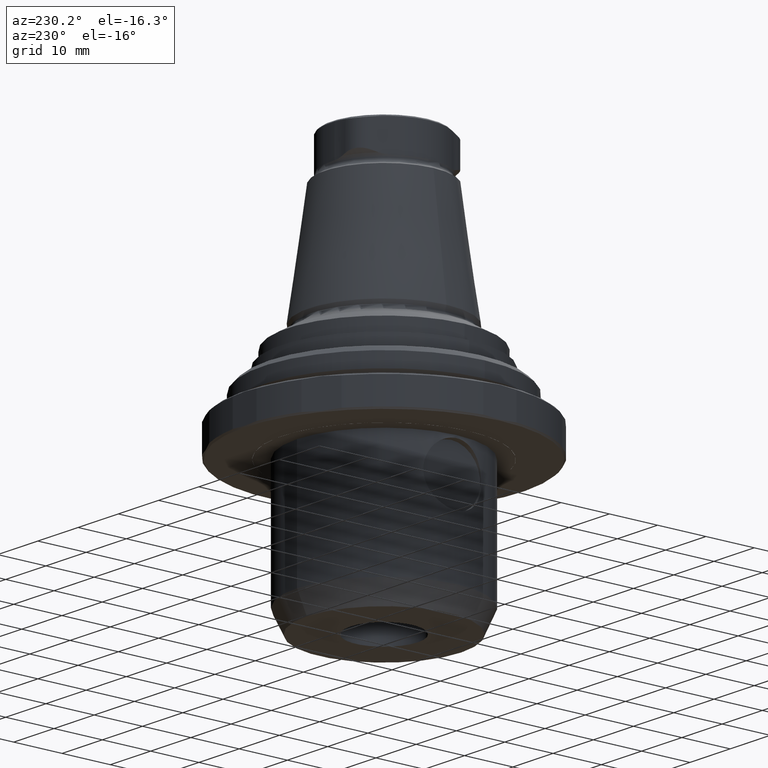
[diagram: clean part render]
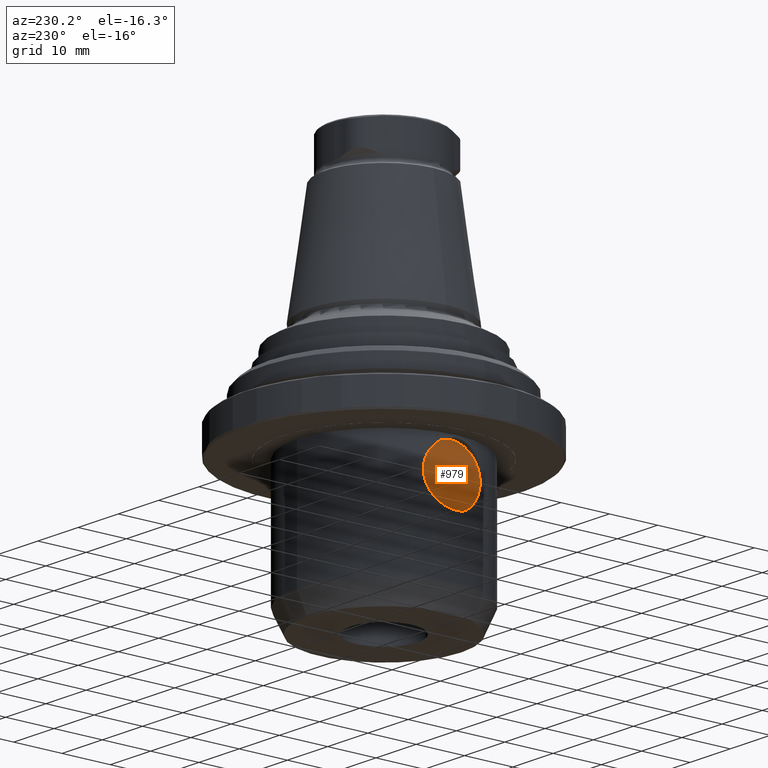
[diagram: same view with one face highlighted and labeled with its STEP entity id]
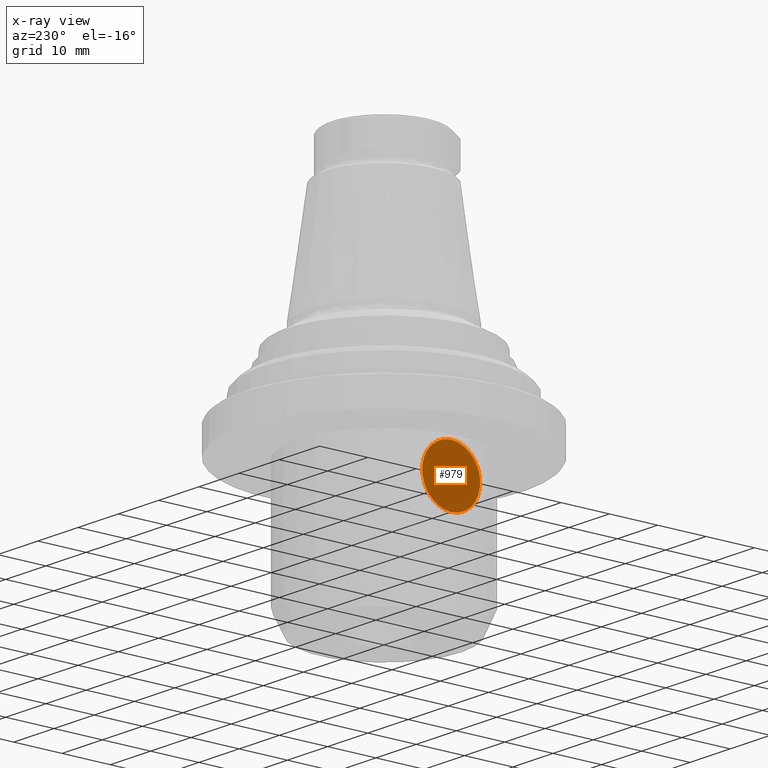
[diagram: x-ray of the same camera — body ghosted, the highlighted face saturated]
A machine part, auxiliary view. The second image highlights one B-rep face of the part: STEP entity #979.
The next image is the same camera in x-ray: the body ghosted, the highlighted face saturated — about 0% of this face is hidden behind the body in this view.
In plain terms, the highlighted planar face has unit normal (1, 0, -0).
Its self-contained STEP definition (entity closure, byte-faithful):
#91=PLANE('',#1114);
#170=CIRCLE('',#1115,5.99999999999994);
#418=ORIENTED_EDGE('',*,*,#551,.F.);
#551=EDGE_CURVE('',#644,#644,#170,.T.);
#644=VERTEX_POINT('',#1844);
#780=EDGE_LOOP('',(#418));
#880=FACE_BOUND('',#780,.T.);
#979=ADVANCED_FACE('',(#880),#91,.F.);
#1114=AXIS2_PLACEMENT_3D('',#1842,#1385,#1386);
#1115=AXIS2_PLACEMENT_3D('',#1843,#1387,#1388);
#1385=DIRECTION('',(1.,0.,-6.71499021510907E-16));
#1386=DIRECTION('',(-6.71499021510907E-16,0.,-1.));
#1387=DIRECTION('',(1.,0.,-6.71499021510907E-16));
#1388=DIRECTION('',(-6.71499021510907E-16,0.,-1.));
#1842=CARTESIAN_POINT('',(-16.7,0.,-13.5));
#1843=CARTESIAN_POINT('',(-16.7,0.,-13.5));
#1844=CARTESIAN_POINT('',(-16.7,0.,-19.5));